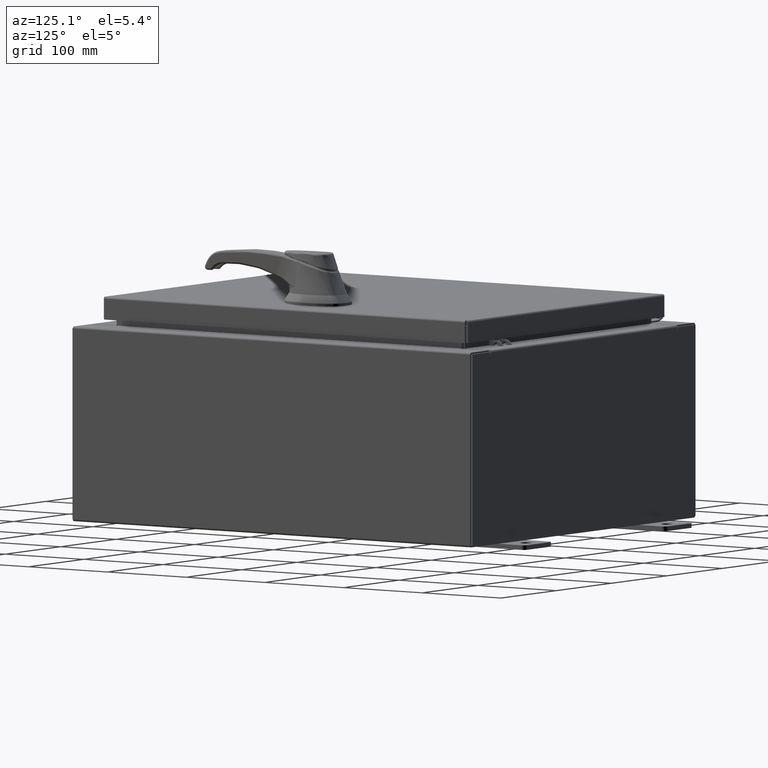
[diagram: clean part render]
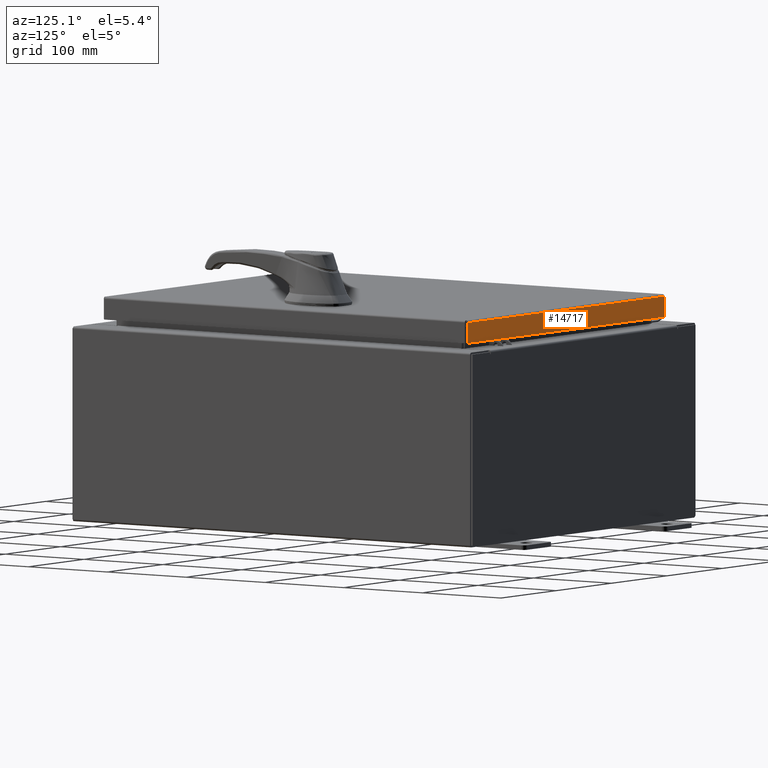
[diagram: same view with one face highlighted and labeled with its STEP entity id]
A machine part, auxiliary view. The second image highlights one B-rep face of the part: STEP entity #14717.
In plain terms, the highlighted planar face has unit normal (0, -1, -0).
Its self-contained STEP definition (entity closure, byte-faithful):
#5371 = AXIS2_PLACEMENT_3D ( 'NONE', #82334, #90755, #40265 ) ;
#14429 = VECTOR ( 'NONE', #67080, 39.37007874015748100 ) ;
#14717 = ADVANCED_FACE ( 'NONE', ( #14926 ), #23285, .F. ) ;
#14926 = FACE_OUTER_BOUND ( 'NONE', #27031, .T. ) ;
#16600 = CARTESIAN_POINT ( 'NONE',  ( -7.077999999999998500, 9.094000000000001200, -0.08769999999999997200 ) ) ;
#18813 = DIRECTION ( 'NONE',  ( 0.0000000000000000000, 3.798629886902792400E-015, -1.000000000000000000 ) ) ;
#19206 = CARTESIAN_POINT ( 'NONE',  ( -6.989157864376267100, 9.094000000000001200, -0.07469999999999972500 ) ) ;
#19391 = VECTOR ( 'NONE', #78213, 39.37007874015748100 ) ;
#19661 = ORIENTED_EDGE ( 'NONE', *, *, #55884, .T. ) ;
#23064 = EDGE_CURVE ( 'NONE', #46341, #109302, #41808, .T. ) ;
#23285 = PLANE ( 'NONE',  #5371 ) ;
#23787 = DIRECTION ( 'NONE',  ( 1.000000000000000000, -0.0000000000000000000, 1.157889796692962600E-016 ) ) ;
#25843 = CARTESIAN_POINT ( 'NONE',  ( -6.989157864376267100, 9.094000000000004700, -0.9377000000000014200 ) ) ;
#27031 = EDGE_LOOP ( 'NONE', ( #91833, #19661, #36390, #60839 ) ) ;
#30361 = CARTESIAN_POINT ( 'NONE',  ( -6.989157864376267100, 9.094000000000001200, -0.08770000000000052800 ) ) ;
#36390 = ORIENTED_EDGE ( 'NONE', *, *, #71688, .F. ) ;
#40265 = DIRECTION ( 'NONE',  ( 0.0000000000000000000, 3.798629886902792400E-015, -1.000000000000000000 ) ) ;
#41808 = LINE ( 'NONE', #19206, #19391 ) ;
#44517 = VERTEX_POINT ( 'NONE', #99122 ) ;
#46341 = VERTEX_POINT ( 'NONE', #30361 ) ;
#55884 = EDGE_CURVE ( 'NONE', #44517, #79210, #95502, .T. ) ;
#60839 = ORIENTED_EDGE ( 'NONE', *, *, #23064, .F. ) ;
#62742 = VECTOR ( 'NONE', #23787, 39.37007874015748100 ) ;
#67080 = DIRECTION ( 'NONE',  ( -1.000000000000000000, -7.330657979096144000E-031, 7.719265311286419400E-017 ) ) ;
#71688 = EDGE_CURVE ( 'NONE', #109302, #79210, #87817, .T. ) ;
#74350 = CARTESIAN_POINT ( 'NONE',  ( -7.077999999999998500, 9.094000000000004700, -0.9377000000000014200 ) ) ;
#78213 = DIRECTION ( 'NONE',  ( -0.0000000000000000000, 3.798629886902792400E-015, -1.000000000000000000 ) ) ;
#79210 = VERTEX_POINT ( 'NONE', #80713 ) ;
#80713 = CARTESIAN_POINT ( 'NONE',  ( 6.989157864376270600, 9.094000000000004700, -0.9376999999999996400 ) ) ;
#82334 = CARTESIAN_POINT ( 'NONE',  ( -3.999900219714020000E-030, 9.094000000000001200, 3.480555384750558000E-014 ) ) ;
#87817 = LINE ( 'NONE', #74350, #62742 ) ;
#88998 = EDGE_CURVE ( 'NONE', #44517, #46341, #104100, .T. ) ;
#90755 = DIRECTION ( 'NONE',  ( 4.398394787457685500E-031, -1.000000000000000000, -3.798629886902792400E-015 ) ) ;
#91833 = ORIENTED_EDGE ( 'NONE', *, *, #88998, .F. ) ;
#95502 = LINE ( 'NONE', #102798, #98142 ) ;
#98142 = VECTOR ( 'NONE', #18813, 39.37007874015748100 ) ;
#99122 = CARTESIAN_POINT ( 'NONE',  ( 6.989157864376270600, 9.094000000000001200, -0.08770000000000106900 ) ) ;
#102798 = CARTESIAN_POINT ( 'NONE',  ( 6.989157864376270600, 9.094000000000001200, 3.480555384750558000E-014 ) ) ;
#104100 = LINE ( 'NONE', #16600, #14429 ) ;
#109302 = VERTEX_POINT ( 'NONE', #25843 ) ;